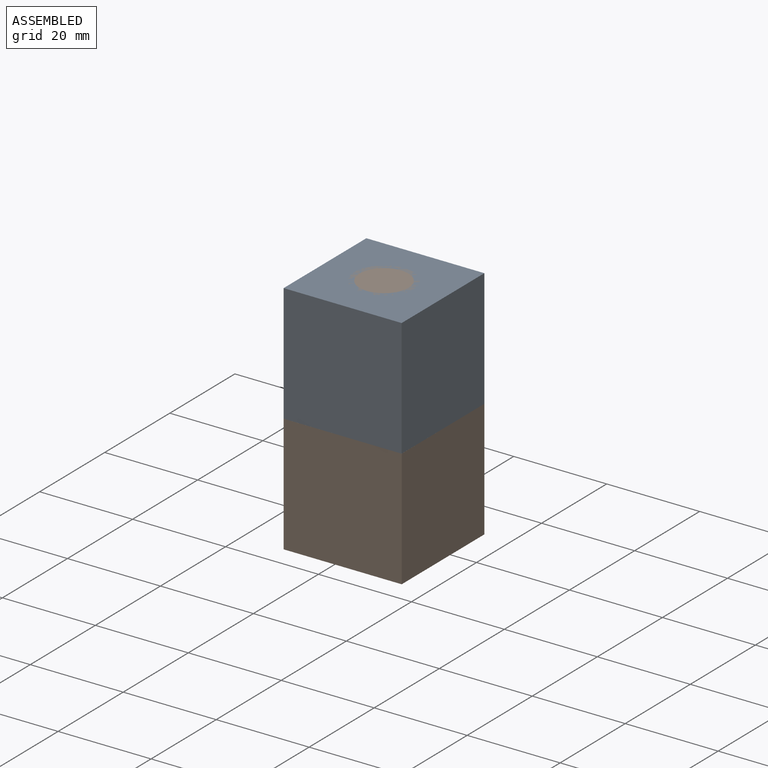
[diagram: assembled view]
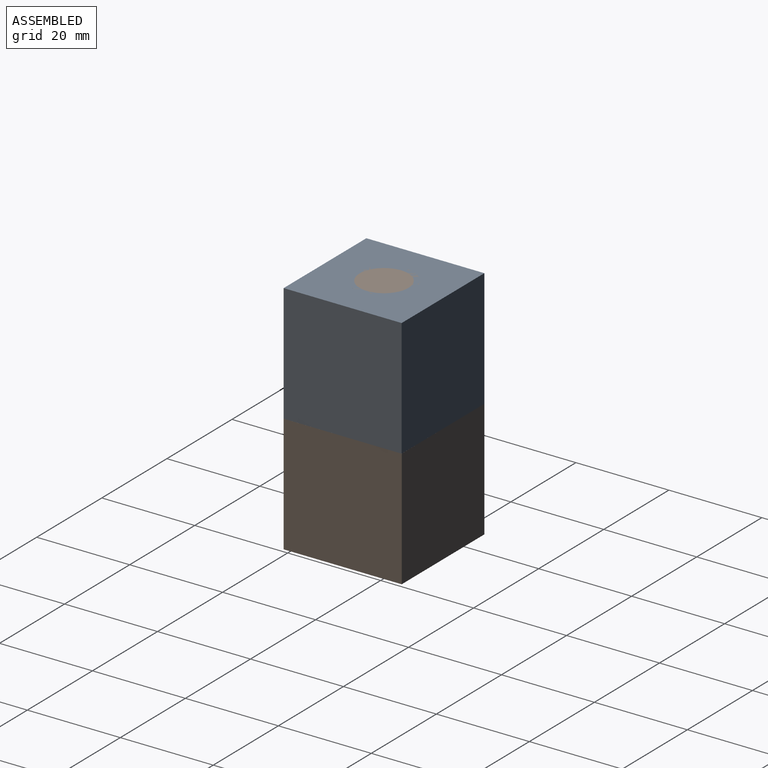
[diagram: assembled view, second angle]
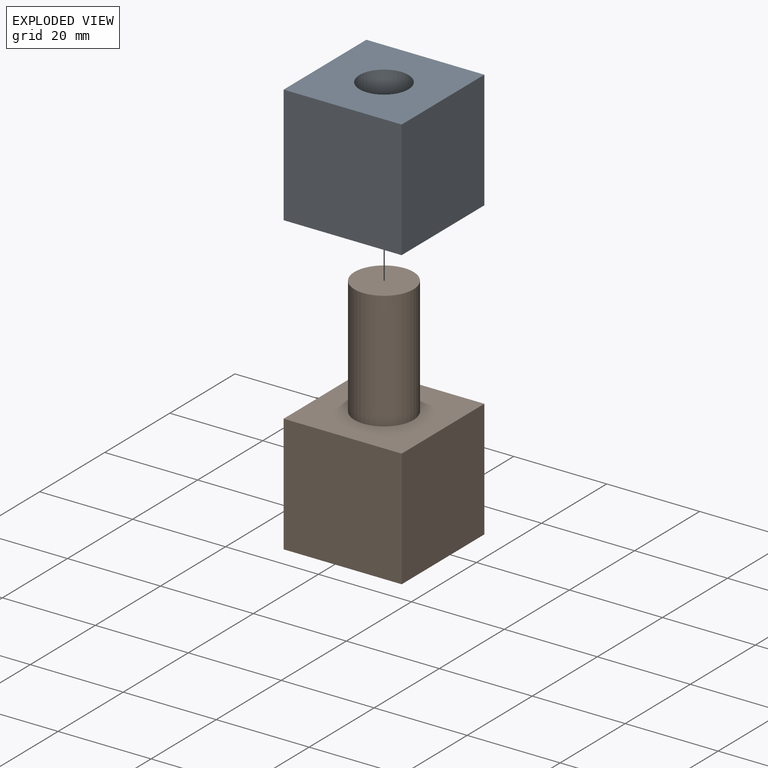
[diagram: exploded view]
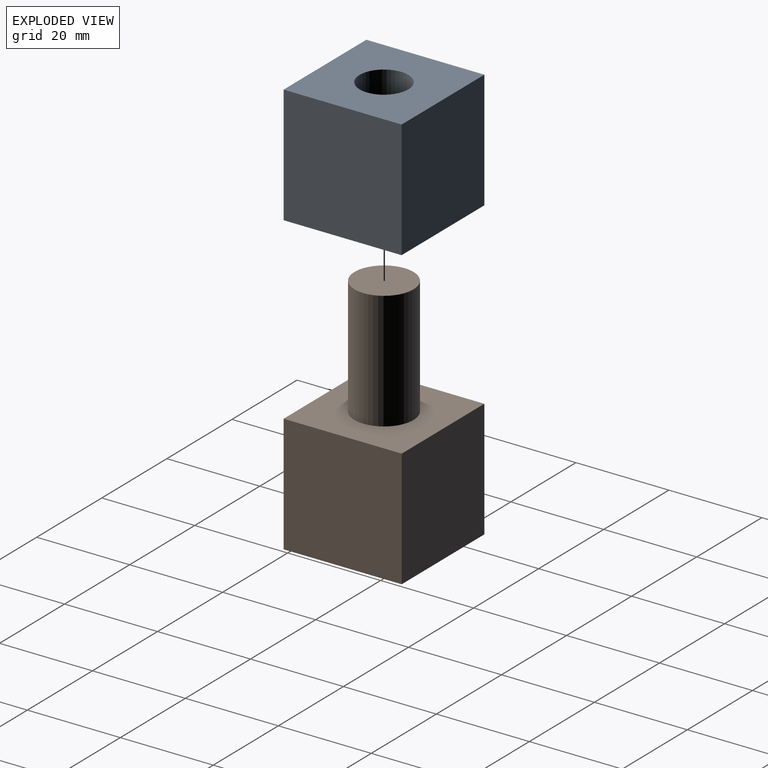
[diagram: exploded view, second angle]
ASSEMBLY  parts=2 mates=2
PART A: 7 faces, bbox 25.4x25.4x25.4 mm
  f0: plane 25.4x25.4mm, normal (1,0,0), area 645.2mm2, adj f1,f3,f4,f5
  f1: plane 25.4x25.4mm, normal (0,1,0), area 645.2mm2, adj f0,f2,f4,f5
  f2: plane 25.4x25.4mm, normal (-1,0,0), area 645.2mm2, adj f1,f3,f4,f5
  f3: plane 25.4x25.4mm, normal (0,-1,0), area 645.2mm2, adj f0,f2,f4,f5
  f4: plane 25.4x25.4mm, normal (0,0,1), area 558.2mm2, adj f0,f1,f2,f3,f6
  f5: plane 25.4x25.4mm, normal (0,0,-1), area 558.2mm2, adj f0,f1,f2,f3,f6
  f6: cylinder r=5.26mm len=25.4mm, axis (0,0,1), area 839.5mm2, adj f4,f5
PART B: 8 faces, bbox 25.4x25.4x50.8 mm
  f0: plane 25.4x25.4mm, normal (-1,0,0), area 645.2mm2, adj f1,f3,f4,f5
  f1: plane 25.4x25.4mm, normal (0,-1,0), area 645.2mm2, adj f0,f2,f4,f5
  f2: plane 25.4x25.4mm, normal (1,0,0), area 645.2mm2, adj f1,f3,f4,f5
  f3: plane 25.4x25.4mm, normal (0,1,0), area 645.2mm2, adj f0,f2,f4,f5
  f4: plane 25.4x25.4mm, normal (0,0,1), area 518.5mm2, adj f0,f1,f2,f3,f6
  f5: plane 25.4x25.4mm, normal (0,0,-1), area 645.2mm2, adj f0,f1,f2,f3
  f6: cylinder r=6.35mm len=25.4mm, axis (0,0,-1), area 1013.4mm2, adj f4,f7
  f7: plane 12.7x12.7mm, normal (0,0,1), area 126.7mm2, adj f6
PLACE A rot(axis=(0,0,1),90deg) t=(-2.69,6.86,25.31)mm
PLACE B t=(-2.69,6.86,-0.09)mm fixed
MATE cylindrical A.f6 <-> B.f6  axis (0,0,1) through (-2.69,6.86,50.71)mm
MATE planar B.f6 <-> A.f6  axis (0,0,1) through (-2.69,6.86,25.31)mm
